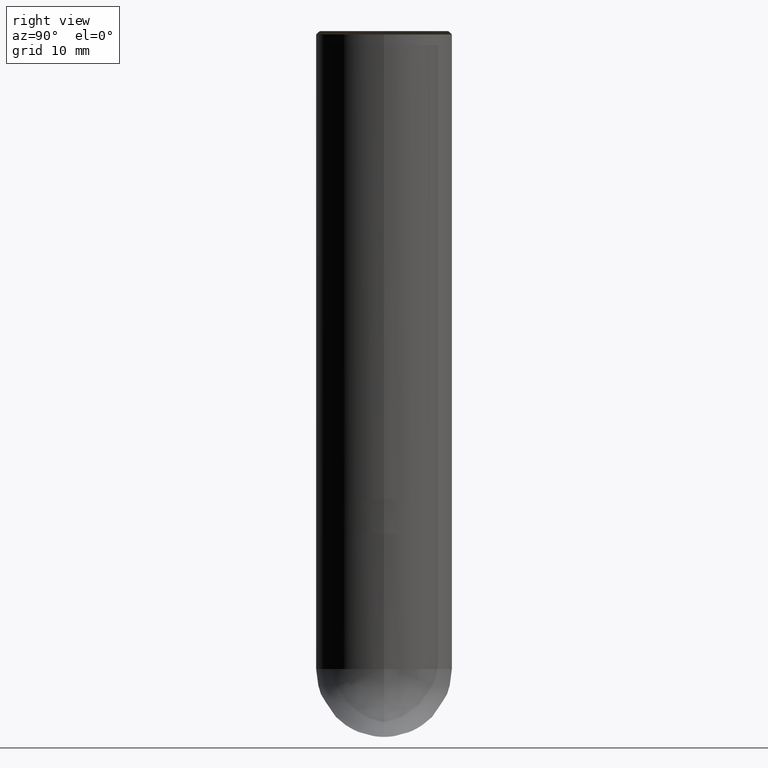
[diagram: clean part render]
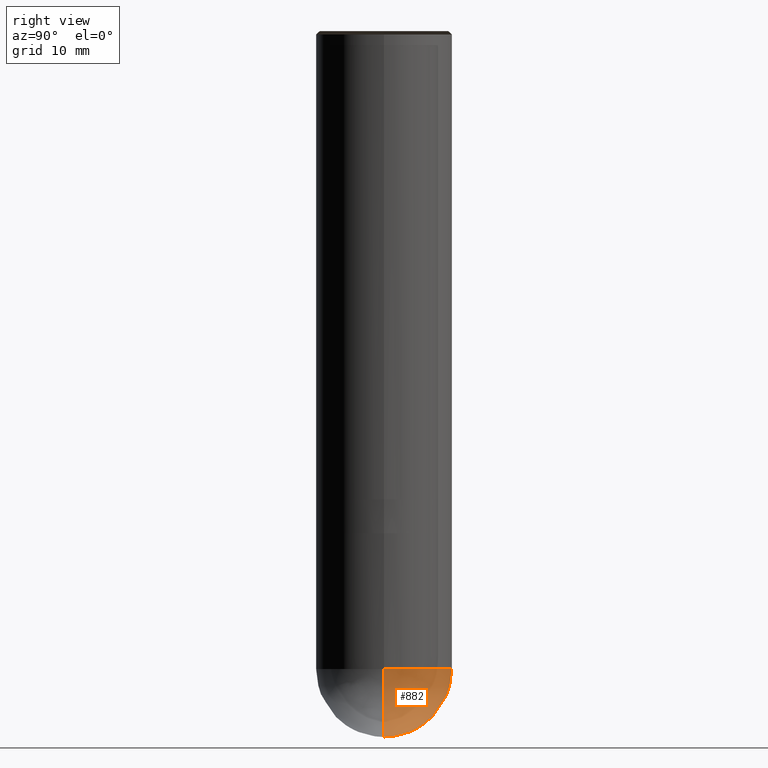
[diagram: same view with one face highlighted and labeled with its STEP entity id]
A machine part, right view. The second image highlights one B-rep face of the part: STEP entity #882.
In plain terms, the highlighted face is a freeform B-spline surface patch.
Its self-contained STEP definition (entity closure, byte-faithful):
#810=CARTESIAN_POINT('',(0.0,0.0,-35.0));
#811=CARTESIAN_POINT('',(10.0,0.0,-35.0));
#812=CARTESIAN_POINT('',(10.0,10.0,-35.0));
#813=CARTESIAN_POINT('',(0.0,10.0,-35.0));
#814=CARTESIAN_POINT('',(-10.0,10.0,-35.0));
#815=CARTESIAN_POINT('',(-10.0,0.0,-35.0));
#816=CARTESIAN_POINT('',(10.0,0.0,-25.0));
#817=CARTESIAN_POINT('',(10.0,10.0,-25.0));
#818=CARTESIAN_POINT('',(0.0,10.0,-25.0));
#819=CARTESIAN_POINT('',(-10.0,10.0,-25.0));
#820=CARTESIAN_POINT('',(-10.0,0.0,-25.0));
#867=(
BOUNDED_SURFACE()
B_SPLINE_SURFACE(2,2,(
(#810,#810,#810,#810,#810),
(#811,#812,#813,#814,#815),
(#816,#817,#818,#819,#820)
), .UNSPECIFIED.,.F.,.F.,.F.)
B_SPLINE_SURFACE_WITH_KNOTS((3,3),(3,2,3),(
0.0,1.0),(
0.0,0.5,1.0), .UNSPECIFIED.)
GEOMETRIC_REPRESENTATION_ITEM()
RATIONAL_B_SPLINE_SURFACE(((1.0,0.707106781187,1.0,0.707106781187,1.0),
(0.707106781187,0.5,0.707106781187,0.5,0.707106781187),
(1.0,0.707106781187,1.0,0.707106781187,1.0)
))
REPRESENTATION_ITEM('')
SURFACE()
);
#868=(
BOUNDED_CURVE()
B_SPLINE_CURVE(2,(#820,#815,#810),.UNSPECIFIED.,.F.,.F.)
B_SPLINE_CURVE_WITH_KNOTS((3,3),
(0.0,1.0),.UNSPECIFIED.)
CURVE()
GEOMETRIC_REPRESENTATION_ITEM()
RATIONAL_B_SPLINE_CURVE((1.0,0.707106781187,1.0))
REPRESENTATION_ITEM('')
);
#869=(
BOUNDED_CURVE()
B_SPLINE_CURVE(2,(#810,#811,#816),.UNSPECIFIED.,.F.,.F.)
B_SPLINE_CURVE_WITH_KNOTS((3,3),
(0.0,1.0),.UNSPECIFIED.)
CURVE()
GEOMETRIC_REPRESENTATION_ITEM()
RATIONAL_B_SPLINE_CURVE((1.0,0.707106781187,1.0))
REPRESENTATION_ITEM('')
);
#870=(
BOUNDED_CURVE()
B_SPLINE_CURVE(2,(#816,#817,#818,#819,#820),.UNSPECIFIED.,.F.,.F.)
B_SPLINE_CURVE_WITH_KNOTS((3,2,3),
(0.0,0.5,1.0),.UNSPECIFIED.)
CURVE()
GEOMETRIC_REPRESENTATION_ITEM()
RATIONAL_B_SPLINE_CURVE((1.0,0.707106781187,1.0,0.707106781187,1.0))
REPRESENTATION_ITEM('')
);
#871=VERTEX_POINT('',#810);
#872=VERTEX_POINT('',#816);
#873=VERTEX_POINT('',#820);
#874=EDGE_CURVE('',#873,#871,#868,.T.);
#875=EDGE_CURVE('',#871,#872,#869,.T.);
#876=EDGE_CURVE('',#872,#873,#870,.T.);
#877=ORIENTED_EDGE('',*,*,#874,.T.);
#878=ORIENTED_EDGE('',*,*,#875,.T.);
#879=ORIENTED_EDGE('',*,*,#876,.T.);
#880=EDGE_LOOP('',(#877,#878,#879));
#881=FACE_OUTER_BOUND('',#880,.T.);
#882=ADVANCED_FACE('',(#881),#867,.T.);